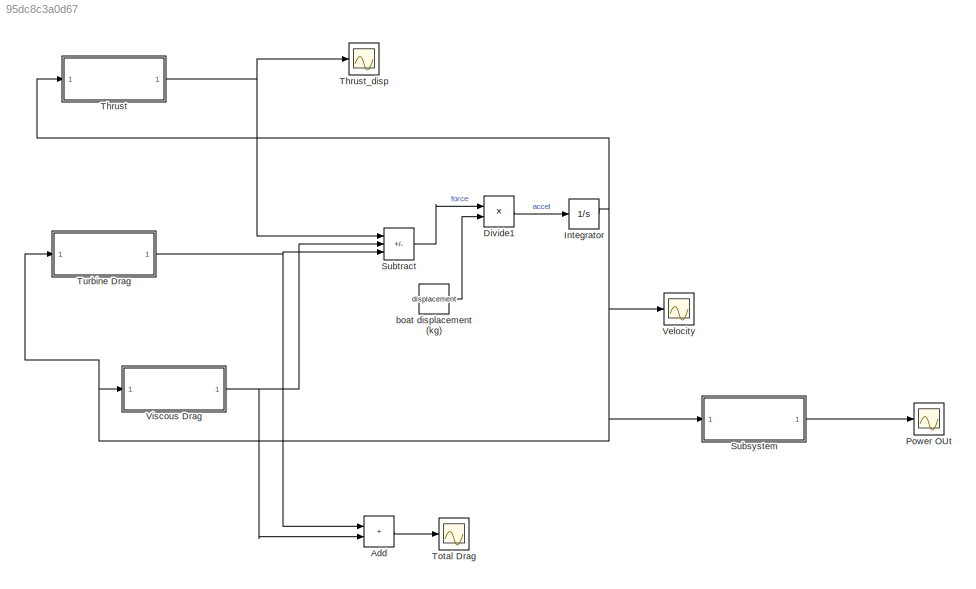
MODEL slx_95dc8c3a0d67
KIND model
CONFIG AbsTol = auto
CONFIG EnableMultiTasking = off
CONFIG FixedStep = auto
CONFIG MaxStep = auto
CONFIG MinStep = auto
CONFIG RelTol = 1e-3
CONFIG SampleTimeConstraint = Unconstrained
CONFIG SolverName = VariableStepAuto
CONFIG StartTime = 0.0
CONFIG StopTime = 60
BLOCK [Sum] Add
  IconShape = rectangular
BLOCK [Product] Divide1
  Inputs = */
BLOCK [Integrator] Integrator
  LimitOutput = on
BLOCK [Scope] Power OUt
  Floating = off
  NumInputPorts = 1
  ScopeSpecificationString = Simulink.scopes.TimeScopeBlockCfg('CurrentConfiguration', extmgr.ConfigurationSet(extmgr.Configuration('Core','General UI',true),extmgr.Configuration('Core','Source UI',true),extmgr.Configuration('Sources','WiredSimulink',true,'DataLoggingVariableName','ScopeData3'),extmgr.Configuration('Visuals','Time Domain',true,'SerializedDisplays',{struct('MinYLimReal','-66.60465','MaxYLimReal','599.44186','Y...<+1523ch>
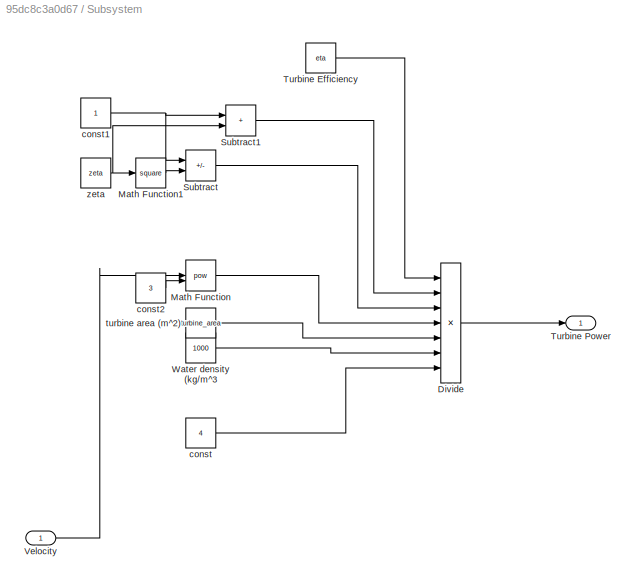
BLOCK [SubSystem] Subsystem
BLOCK [Product] Subsystem/Divide
  Inputs = ******/
BLOCK [Math] Subsystem/Math Function
  Operator = pow
BLOCK [Math] Subsystem/Math Function1
  Operator = square
BLOCK [Sum] Subsystem/Subtract
  IconShape = rectangular
  Inputs = +-
BLOCK [Sum] Subsystem/Subtract1
  IconShape = rectangular
BLOCK [Constant] Subsystem/Turbine Efficiency
  Value = eta
BLOCK [Outport] Subsystem/Turbine Power
BLOCK [Inport] Subsystem/Velocity
BLOCK [Constant] Subsystem/Water density (kg//m^3
  Value = 1000
BLOCK [Constant] Subsystem/const
  Value = 4
BLOCK [Constant] Subsystem/const1
BLOCK [Constant] Subsystem/const2
  Value = 3
BLOCK [Constant] Subsystem/turbine area (m^2)
  Value = turbine_area
BLOCK [Constant] Subsystem/zeta
  Value = zeta
BLOCK [Sum] Subtract
  IconShape = rectangular
  Inputs = +--
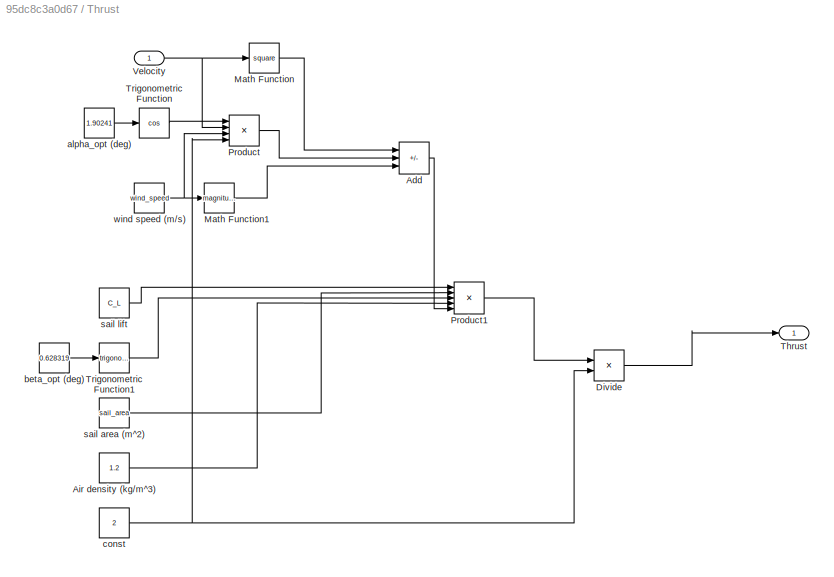
BLOCK [SubSystem] Thrust
BLOCK [Sum] Thrust/Add
  IconShape = rectangular
  Inputs = +-+
BLOCK [Constant] Thrust/Air density (kg//m^3)
  Value = 1.2
BLOCK [Product] Thrust/Divide
  Inputs = */
BLOCK [Math] Thrust/Math Function
  Operator = square
BLOCK [Math] Thrust/Math Function1
  Operator = magnitude^2
BLOCK [Product] Thrust/Product
  Inputs = 4
BLOCK [Product] Thrust/Product1
  Inputs = 5
BLOCK [Outport] Thrust/Thrust
BLOCK [Trigonometry] Thrust/Trigonometric Function
  Operator = cos
BLOCK [Trigonometry] Thrust/Trigonometric Function1
BLOCK [Inport] Thrust/Velocity
BLOCK [Constant] Thrust/alpha_opt (deg)
  Value = 1.90241
BLOCK [Constant] Thrust/beta_opt (deg)
  Value = 0.628319
BLOCK [Constant] Thrust/const
  Value = 2
BLOCK [Constant] Thrust/sail area (m^2)
  Value = sail_area
BLOCK [Constant] Thrust/sail lift
  Value = C_L
BLOCK [Constant] Thrust/wind speed (m//s)
  Value = wind_speed
BLOCK [Scope] Thrust_disp
  Floating = off
  NumInputPorts = 1
  ScopeSpecificationString = Simulink.scopes.TimeScopeBlockCfg('CurrentConfiguration', extmgr.ConfigurationSet(extmgr.Configuration('Core','General UI',true),extmgr.Configuration('Core','Source UI',true),extmgr.Configuration('Sources','WiredSimulink',true,'DataLoggingVariableName','ScopeData1'),extmgr.Configuration('Visuals','Time Domain',true,'SerializedDisplays',{struct('MinYLimReal','369.96632','MaxYLimReal','1329.02147','...<+1529ch>
BLOCK [Scope] Total Drag
  Floating = off
  NumInputPorts = 1
  ScopeSpecificationString = Simulink.scopes.TimeScopeBlockCfg('CurrentConfiguration', extmgr.ConfigurationSet(extmgr.Configuration('Core','General UI',true),extmgr.Configuration('Core','Source UI',true),extmgr.Configuration('Sources','WiredSimulink',true,'DataLoggingVariableName','ScopeData2'),extmgr.Configuration('Visuals','Time Domain',true,'SerializedDisplays',{struct('MinYLimReal','-154.09328','MaxYLimReal','1386.83951',...<+1500ch>
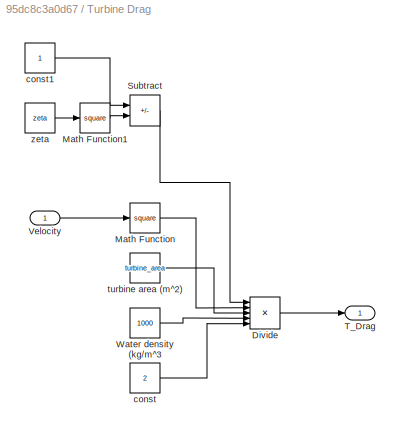
BLOCK [SubSystem] Turbine Drag
BLOCK [Product] Turbine Drag/Divide
  Inputs = ****/
BLOCK [Math] Turbine Drag/Math Function
  Operator = square
BLOCK [Math] Turbine Drag/Math Function1
  Operator = square
BLOCK [Sum] Turbine Drag/Subtract
  IconShape = rectangular
  Inputs = +-
BLOCK [Outport] Turbine Drag/T_Drag
BLOCK [Inport] Turbine Drag/Velocity
BLOCK [Constant] Turbine Drag/Water density (kg//m^3
  Value = 1000
BLOCK [Constant] Turbine Drag/const
  Value = 2
BLOCK [Constant] Turbine Drag/const1
BLOCK [Constant] Turbine Drag/turbine area (m^2)
  Value = turbine_area
BLOCK [Constant] Turbine Drag/zeta
  Value = zeta
BLOCK [Scope] Velocity
  Floating = off
  NumInputPorts = 1
  ScopeSpecificationString = Simulink.scopes.TimeScopeBlockCfg('CurrentConfiguration', extmgr.ConfigurationSet(extmgr.Configuration('Core','General UI',true),extmgr.Configuration('Core','Source UI',true),extmgr.Configuration('Sources','WiredSimulink',true),extmgr.Configuration('Visuals','Time Domain',true,'SerializedDisplays',{struct('MinYLimReal','-0.64147','MaxYLimReal','5.77325','YLabelReal','','MinYLimMag','0.00000','MaxY...<+1475ch>
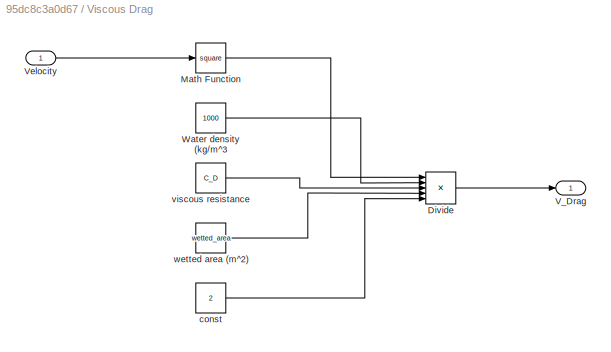
BLOCK [SubSystem] Viscous Drag
BLOCK [Product] Viscous Drag/Divide
  Inputs = ****/
BLOCK [Math] Viscous Drag/Math Function
  Operator = square
BLOCK [Outport] Viscous Drag/V_Drag
BLOCK [Inport] Viscous Drag/Velocity
BLOCK [Constant] Viscous Drag/Water density (kg//m^3
  Value = 1000
BLOCK [Constant] Viscous Drag/const
  Value = 2
BLOCK [Constant] Viscous Drag/viscous resistance
  Value = C_D
BLOCK [Constant] Viscous Drag/wetted area (m^2)
  Value = wetted_area
BLOCK [Constant] boat displacement (kg)
  Value = displacement
LINE Add:1 -> Total Drag:1
LINE Divide1:1 -> Integrator:1
NET Integrator:1 -> Subsystem:1, Thrust:1, Turbine Drag:1, Velocity:1, Viscous Drag:1
LINE Subsystem/Divide:1 -> Subsystem/Turbine Power:1
LINE Subsystem/Math Function1:1 -> Subsystem/Subtract:2
LINE Subsystem/Math Function:1 -> Subsystem/Divide:4
LINE Subsystem/Subtract1:1 -> Subsystem/Divide:2
LINE Subsystem/Subtract:1 -> Subsystem/Divide:3
LINE Subsystem/Turbine Efficiency:1 -> Subsystem/Divide:1
LINE Subsystem/Velocity:1 -> Subsystem/Math Function:1
LINE Subsystem/Water density (kg//m^3:1 -> Subsystem/Divide:6
NET Subsystem/const1:1 -> Subsystem/Subtract1:1, Subsystem/Subtract:1
LINE Subsystem/const2:1 -> Subsystem/Math Function:2
LINE Subsystem/const:1 -> Subsystem/Divide:7
LINE Subsystem/turbine area (m^2):1 -> Subsystem/Divide:5
NET Subsystem/zeta:1 -> Subsystem/Math Function1:1, Subsystem/Subtract1:2
LINE Subsystem:1 -> Power OUt:1
LINE Subtract:1 -> Divide1:1
LINE Thrust/Add:1 -> Thrust/Product1:5
LINE Thrust/Air density (kg//m^3):1 -> Thrust/Product1:4
LINE Thrust/Divide:1 -> Thrust/Thrust:1
LINE Thrust/Math Function1:1 -> Thrust/Add:3
LINE Thrust/Math Function:1 -> Thrust/Add:1
LINE Thrust/Product1:1 -> Thrust/Divide:1
LINE Thrust/Product:1 -> Thrust/Add:2
LINE Thrust/Trigonometric Function1:1 -> Thrust/Product1:3
LINE Thrust/Trigonometric Function:1 -> Thrust/Product:1
NET Thrust/Velocity:1 -> Thrust/Math Function:1, Thrust/Product:2
LINE Thrust/alpha_opt (deg):1 -> Thrust/Trigonometric Function:1
LINE Thrust/beta_opt (deg):1 -> Thrust/Trigonometric Function1:1
NET Thrust/const:1 -> Thrust/Divide:2, Thrust/Product:4
LINE Thrust/sail area (m^2):1 -> Thrust/Product1:2
LINE Thrust/sail lift:1 -> Thrust/Product1:1
NET Thrust/wind speed (m//s):1 -> Thrust/Math Function1:1, Thrust/Product:3
NET Thrust:1 -> Subtract:1, Thrust_disp:1
LINE Turbine Drag/Divide:1 -> Turbine Drag/T_Drag:1
LINE Turbine Drag/Math Function1:1 -> Turbine Drag/Subtract:2
LINE Turbine Drag/Math Function:1 -> Turbine Drag/Divide:2
LINE Turbine Drag/Subtract:1 -> Turbine Drag/Divide:1
LINE Turbine Drag/Velocity:1 -> Turbine Drag/Math Function:1
LINE Turbine Drag/Water density (kg//m^3:1 -> Turbine Drag/Divide:4
LINE Turbine Drag/const1:1 -> Turbine Drag/Subtract:1
LINE Turbine Drag/const:1 -> Turbine Drag/Divide:5
LINE Turbine Drag/turbine area (m^2):1 -> Turbine Drag/Divide:3
LINE Turbine Drag/zeta:1 -> Turbine Drag/Math Function1:1
NET Turbine Drag:1 -> Add:1, Subtract:3
LINE Viscous Drag/Divide:1 -> Viscous Drag/V_Drag:1
LINE Viscous Drag/Math Function:1 -> Viscous Drag/Divide:1
LINE Viscous Drag/Velocity:1 -> Viscous Drag/Math Function:1
LINE Viscous Drag/Water density (kg//m^3:1 -> Viscous Drag/Divide:2
LINE Viscous Drag/const:1 -> Viscous Drag/Divide:5
LINE Viscous Drag/viscous resistance:1 -> Viscous Drag/Divide:3
LINE Viscous Drag/wetted area (m^2):1 -> Viscous Drag/Divide:4
NET Viscous Drag:1 -> Add:2, Subtract:2
LINE boat displacement (kg):1 -> Divide1:2
note: NET lines group one-source signal fan-out (src -> all destinations, sorted); 1:1 wires keep LINE
